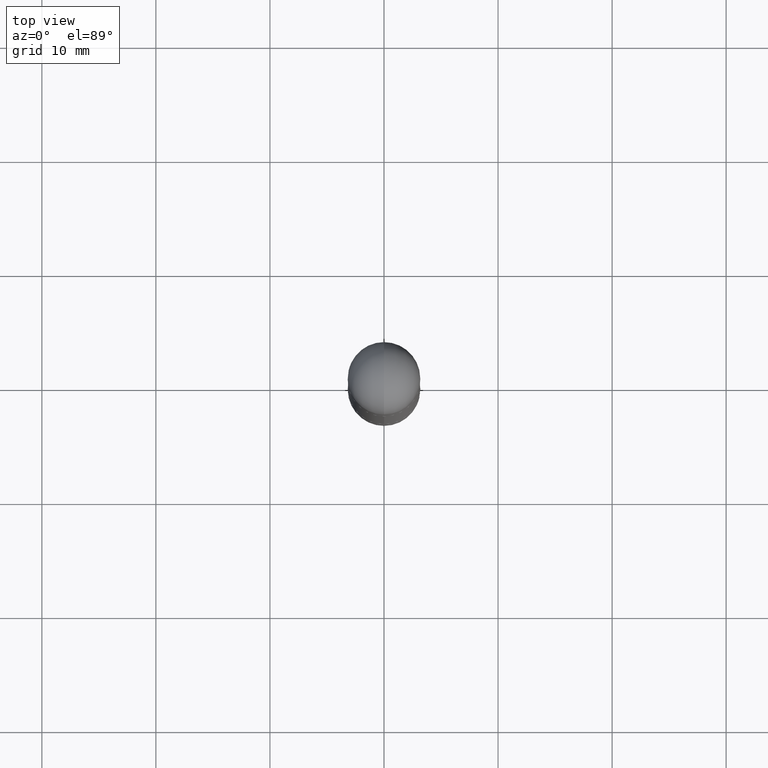
[diagram: clean part render]
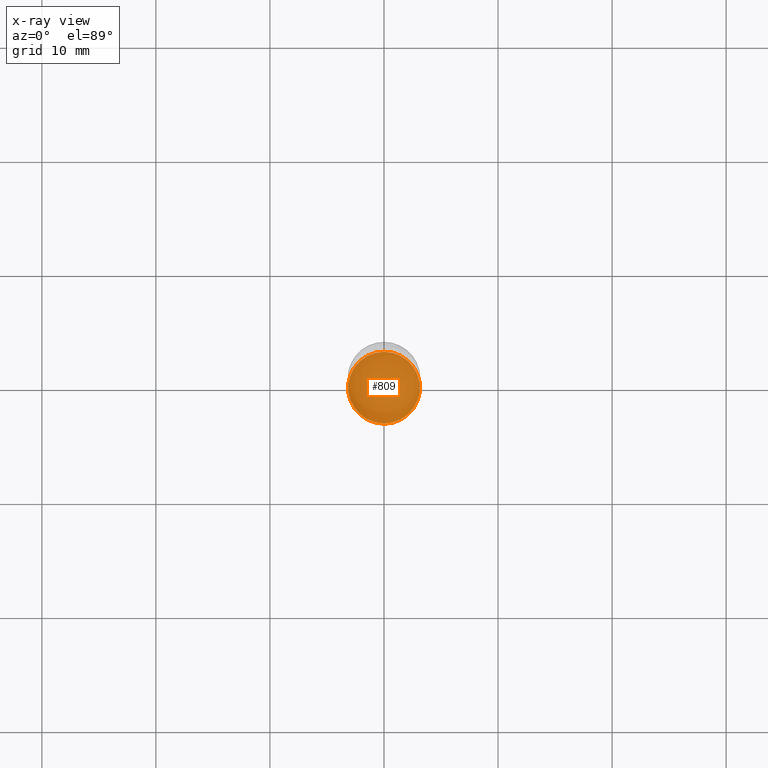
[diagram: x-ray — body ghosted, one internal face saturated and labeled with its STEP entity id]
A machine part, top view, then the same camera in x-ray: the body is ghosted and one INTERNAL B-rep face — a face not visible from any outside direction — is saturated and labeled: STEP entity #809.
In plain terms, the highlighted planar face has unit normal (-0, 0, 1).
Its self-contained STEP definition (entity closure, byte-faithful):
#47 = ORIENTED_EDGE ( 'NONE', *, *, #500, .F. ) ;
#93 = DIRECTION ( 'NONE',  ( -6.982962677686265922E-15, -1.000000000000000000, 4.406206441393973340E-15 ) ) ;
#194 = CARTESIAN_POINT ( 'NONE',  ( 8.846257060213744265E-16, 0.1239999999999930186, -2.000000000000000444 ) ) ;
#213 = DIRECTION ( 'NONE',  ( -2.444981061416011497E-29, 3.492179817113241133E-15, 1.000000000000000000 ) ) ;
#244 = DIRECTION ( 'NONE',  ( -2.444981061416011497E-29, 3.492179817113241133E-15, 1.000000000000000000 ) ) ;
#277 = VERTEX_POINT ( 'NONE', #294 ) ;
#283 = ORIENTED_EDGE ( 'NONE', *, *, #686, .F. ) ;
#294 = CARTESIAN_POINT ( 'NONE',  ( -8.658873720330480207E-16, -0.1240000000000069796, -1.999999999999999112 ) ) ;
#296 = CARTESIAN_POINT ( 'NONE',  ( 4.889962122832022433E-29, -6.984359634226481478E-15, -1.999999999999999778 ) ) ;
#339 = DIRECTION ( 'NONE',  ( -2.444981061416010936E-29, 3.492179817113241133E-15, 1.000000000000000000 ) ) ;
#406 = FACE_OUTER_BOUND ( 'NONE', #553, .T. ) ;
#427 = CARTESIAN_POINT ( 'NONE',  ( 4.889962122832022433E-29, -6.984359634226481478E-15, -1.999999999999999778 ) ) ;
#483 = CARTESIAN_POINT ( 'NONE',  ( 4.889962122832022994E-29, -6.984359634226482266E-15, -2.000000000000000000 ) ) ;
#496 = DIRECTION ( 'NONE',  ( -6.982962677686265922E-15, -1.000000000000000000, 4.406206441393973340E-15 ) ) ;
#500 = EDGE_CURVE ( 'NONE', #573, #277, #789, .T. ) ;
#527 = AXIS2_PLACEMENT_3D ( 'NONE', #296, #213, #93 ) ;
#553 = EDGE_LOOP ( 'NONE', ( #283, #47 ) ) ;
#573 = VERTEX_POINT ( 'NONE', #194 ) ;
#588 = DIRECTION ( 'NONE',  ( -6.982962677686265922E-15, -1.000000000000000000, 3.492179817113241133E-15 ) ) ;
#667 = AXIS2_PLACEMENT_3D ( 'NONE', #427, #244, #496 ) ;
#686 = EDGE_CURVE ( 'NONE', #277, #573, #774, .T. ) ;
#724 = PLANE ( 'NONE',  #759 ) ;
#759 = AXIS2_PLACEMENT_3D ( 'NONE', #483, #339, #588 ) ;
#774 = CIRCLE ( 'NONE', #527, 0.1239999999999999991 ) ;
#789 = CIRCLE ( 'NONE', #667, 0.1239999999999999991 ) ;
#809 = ADVANCED_FACE ( 'NONE', ( #406 ), #724, .F. ) ;